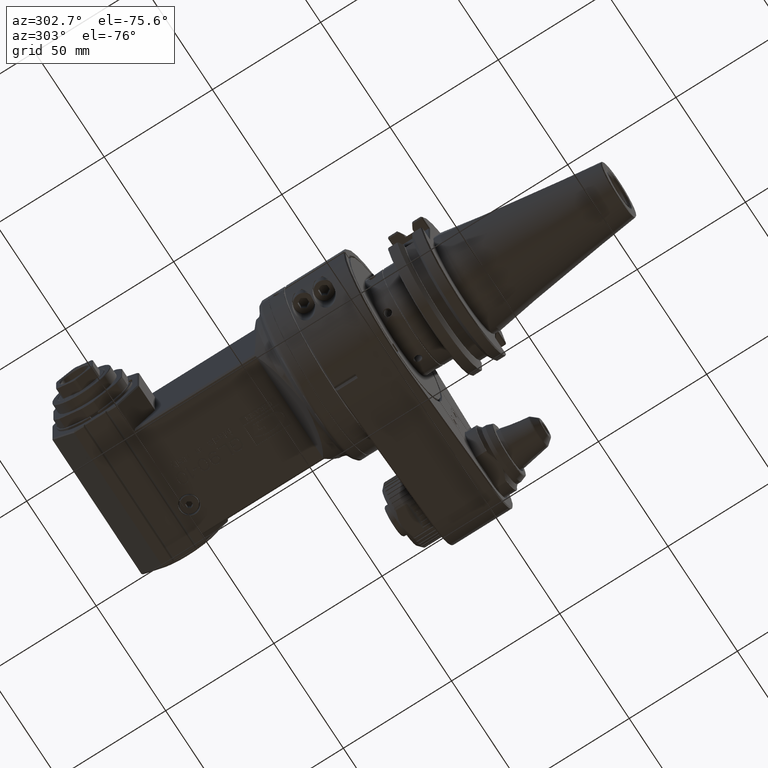
[diagram: clean part render]
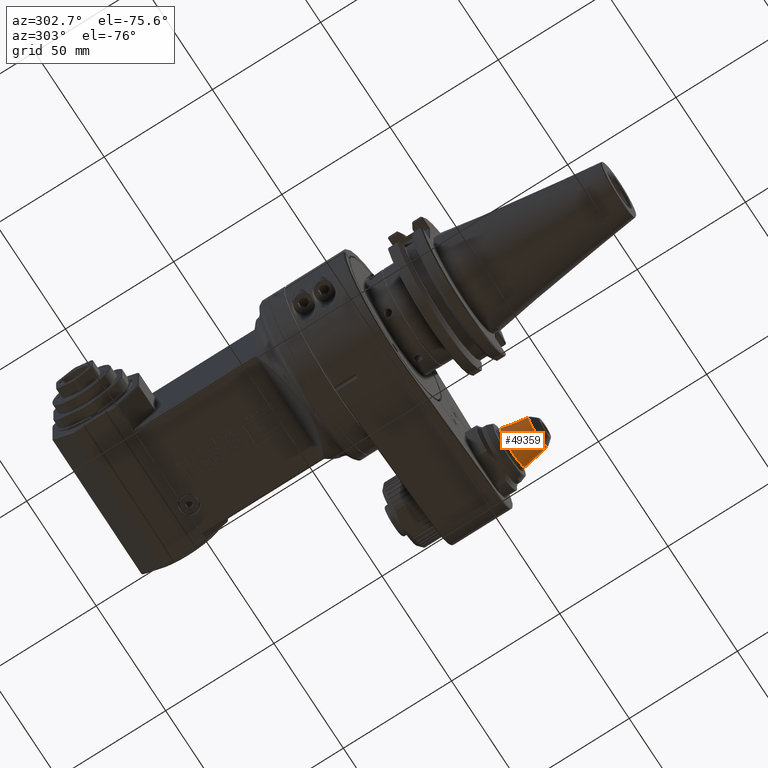
[diagram: same view with one face highlighted and labeled with its STEP entity id]
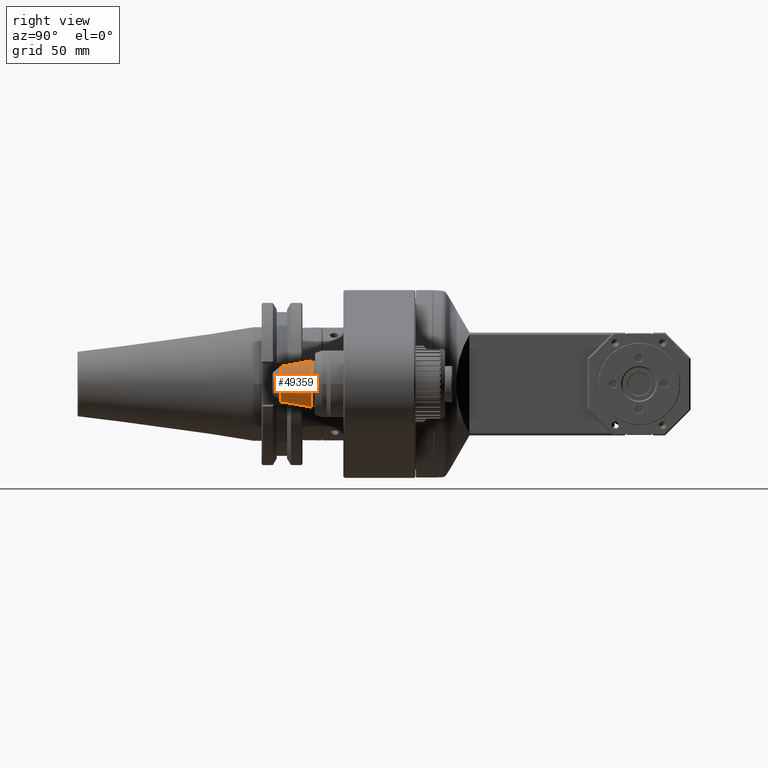
[diagram: same view with one face highlighted and labeled with its STEP entity id]
A machine part, auxiliary view. The second image highlights one B-rep face of the part: STEP entity #49359.
A second angle (right view) of the same face is appended — the face is thin or edge-on in the first view.
In plain terms, the highlighted conical surface has half-angle 10 deg.
Its self-contained STEP definition (entity closure, byte-faithful):
#2943=CONICAL_SURFACE('',#53247,7.965309788635,0.174532867106847);
#5651=FACE_OUTER_BOUND('',#8613,.T.);
#8613=EDGE_LOOP('',(#44609,#44610,#44611,#44612,#44613,#44614));
#13605=LINE('',#83611,#18687);
#18687=VECTOR('',#65284,7.965309788635);
#20427=CIRCLE('',#53244,6.930602149853);
#20429=CIRCLE('',#53246,6.930602149853);
#20430=CIRCLE('',#53248,9.);
#20431=CIRCLE('',#53249,9.);
#24813=VERTEX_POINT('',#83602);
#24814=VERTEX_POINT('',#83603);
#24815=VERTEX_POINT('',#83608);
#24816=VERTEX_POINT('',#83609);
#31533=EDGE_CURVE('',#24813,#24814,#20427,.T.);
#31535=EDGE_CURVE('',#24814,#24813,#20429,.T.);
#31536=EDGE_CURVE('',#24815,#24816,#20430,.T.);
#31537=EDGE_CURVE('',#24816,#24814,#13605,.T.);
#31538=EDGE_CURVE('',#24816,#24815,#20431,.T.);
#44609=ORIENTED_EDGE('',*,*,#31536,.T.);
#44610=ORIENTED_EDGE('',*,*,#31537,.T.);
#44611=ORIENTED_EDGE('',*,*,#31535,.T.);
#44612=ORIENTED_EDGE('',*,*,#31533,.T.);
#44613=ORIENTED_EDGE('',*,*,#31537,.F.);
#44614=ORIENTED_EDGE('',*,*,#31538,.T.);
#49359=ADVANCED_FACE('',(#5651),#2943,.T.);
#53244=AXIS2_PLACEMENT_3D('',#83604,#65274,#65275);
#53246=AXIS2_PLACEMENT_3D('',#83606,#65278,#65279);
#53247=AXIS2_PLACEMENT_3D('',#83607,#65280,#65281);
#53248=AXIS2_PLACEMENT_3D('',#83610,#65282,#65283);
#53249=AXIS2_PLACEMENT_3D('',#83612,#65285,#65286);
#65274=DIRECTION('center_axis',(0.,1.,0.));
#65275=DIRECTION('ref_axis',(-3.335686669623E-10,0.,1.));
#65278=DIRECTION('center_axis',(0.,1.,0.));
#65279=DIRECTION('ref_axis',(-3.335686669623E-10,0.,1.));
#65280=DIRECTION('center_axis',(0.,1.,0.));
#65281=DIRECTION('ref_axis',(1.,0.,0.));
#65282=DIRECTION('center_axis',(0.,-1.,0.));
#65283=DIRECTION('ref_axis',(0.,0.,-1.));
#65284=DIRECTION('',(0.173648120456901,-0.984807763099878,-2.12657614895498E-17));
#65285=DIRECTION('center_axis',(0.,-1.,0.));
#65286=DIRECTION('ref_axis',(0.,0.,-1.));
#83602=CARTESIAN_POINT('',(65.0878005384564,-31.33612505294,-6.93004597567677));
#83603=CARTESIAN_POINT('',(58.0693978501469,-31.33612505294,-2.52358066020187E-15));
#83604=CARTESIAN_POINT('Origin',(65.,-31.33612505294,-4.09097214678E-15));
#83606=CARTESIAN_POINT('Origin',(65.,-31.33612505294,-4.09097214678E-15));
#83607=CARTESIAN_POINT('Origin',(65.,-25.46800443908,-3.3723346341E-15));
#83608=CARTESIAN_POINT('',(65.,-19.59998852704,9.00000000000001));
#83609=CARTESIAN_POINT('',(56.0000010031437,-19.5999883501588,-2.27015263771705E-15));
#83610=CARTESIAN_POINT('Origin',(65.,-19.59998852704,-4.9781978335E-15));
#83611=CARTESIAN_POINT('',(57.034690211365,-25.46800443908,-2.39686552041311E-15));
#83612=CARTESIAN_POINT('Origin',(65.,-19.59998852704,-4.9781978335E-15));